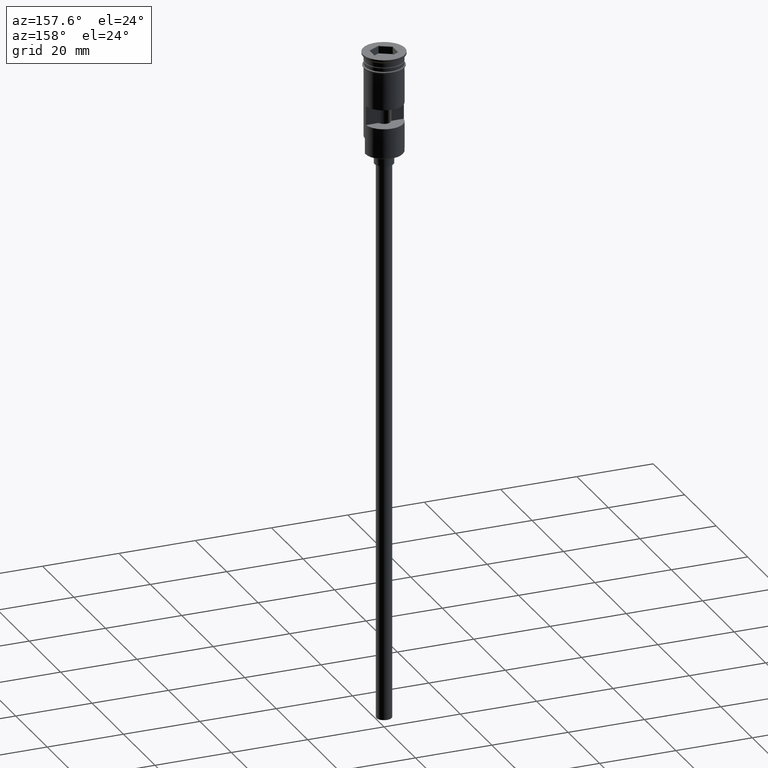
[diagram: clean part render]
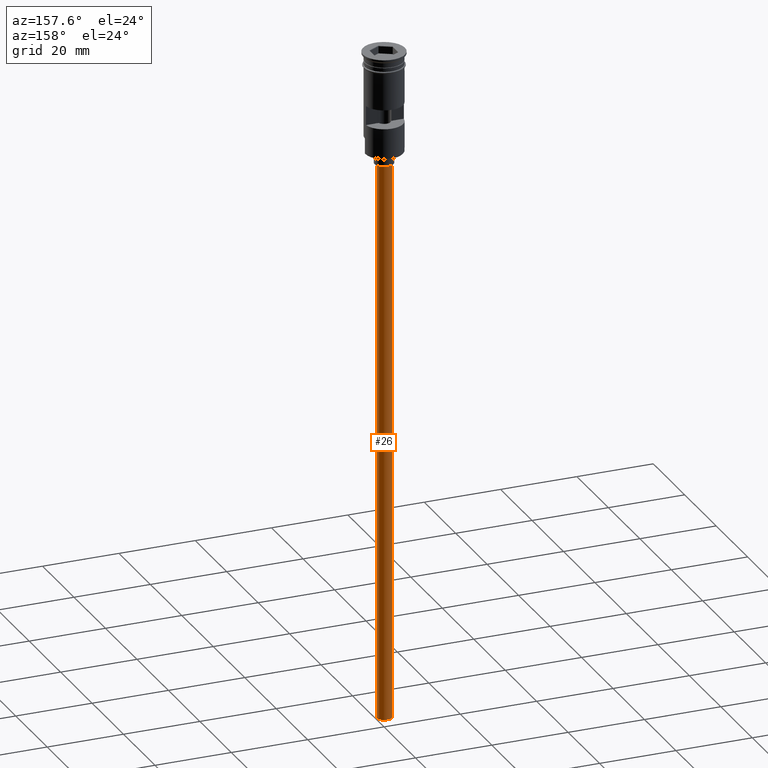
[diagram: same view with one face highlighted and labeled with its STEP entity id]
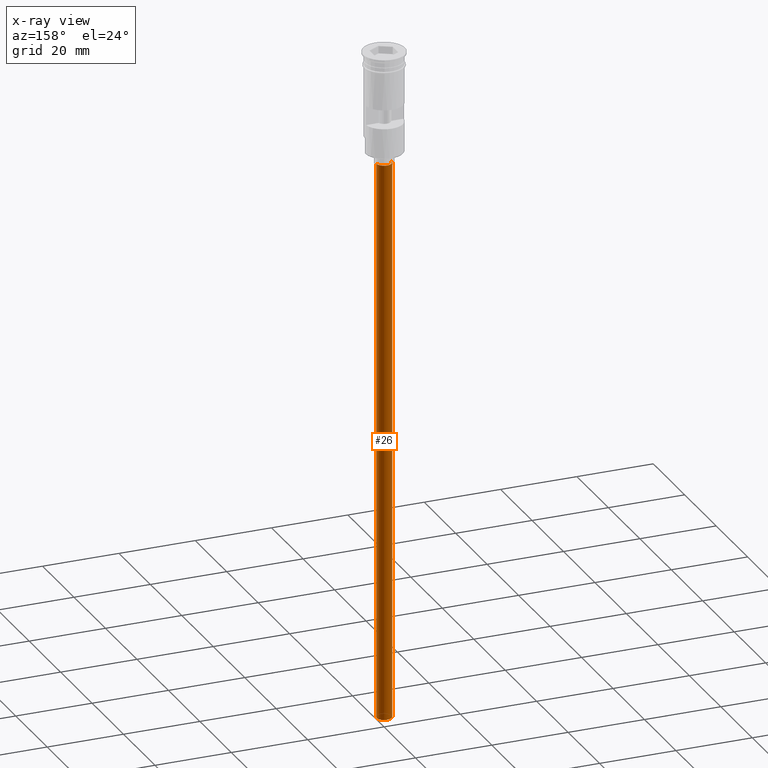
[diagram: x-ray of the same camera — body ghosted, the highlighted face saturated]
A machine part, auxiliary view. The second image highlights one B-rep face of the part: STEP entity #26.
The next image is the same camera in x-ray: the body ghosted, the highlighted face saturated — about 0% of this face is hidden behind the body in this view.
In plain terms, the highlighted cylindrical surface (edge-blend (fillet) strip) has radius 2 mm, axis along (-0, -0, 1).
Its self-contained STEP definition (entity closure, byte-faithful):
#26 = ADVANCED_FACE ( 'NONE', ( #309 ), #1020, .T. ) ;
#57 = CARTESIAN_POINT ( 'NONE',  ( 0.000000000000000000, 0.000000000000000000, -176.5000000000000000 ) ) ;
#87 = EDGE_CURVE ( 'NONE', #1250, #406, #927, .T. ) ;
#104 = CARTESIAN_POINT ( 'NONE',  ( 2.000000000000000000, 0.000000000000000000, -176.5000000000000000 ) ) ;
#105 = DIRECTION ( 'NONE',  ( -0.000000000000000000, -0.000000000000000000, 1.000000000000000000 ) ) ;
#137 = EDGE_CURVE ( 'NONE', #607, #270, #1076, .T. ) ;
#172 = DIRECTION ( 'NONE',  ( 1.000000000000000000, 0.000000000000000000, 0.000000000000000000 ) ) ;
#234 = AXIS2_PLACEMENT_3D ( 'NONE', #621, #972, #1112 ) ;
#270 = VERTEX_POINT ( 'NONE', #878 ) ;
#289 = CARTESIAN_POINT ( 'NONE',  ( -2.000000000000000000, 2.449293598294706414E-16, -29.50000000000000000 ) ) ;
#296 = EDGE_CURVE ( 'NONE', #406, #270, #696, .T. ) ;
#309 = FACE_OUTER_BOUND ( 'NONE', #1394, .T. ) ;
#310 = DIRECTION ( 'NONE',  ( -1.000000000000000000, 0.000000000000000000, 0.000000000000000000 ) ) ;
#406 = VERTEX_POINT ( 'NONE', #289 ) ;
#532 = ORIENTED_EDGE ( 'NONE', *, *, #296, .T. ) ;
#607 = VERTEX_POINT ( 'NONE', #104 ) ;
#620 = VECTOR ( 'NONE', #1069, 1000.000000000000000 ) ;
#621 = CARTESIAN_POINT ( 'NONE',  ( 0.000000000000000000, 0.000000000000000000, -29.50000000000000000 ) ) ;
#686 = CARTESIAN_POINT ( 'NONE',  ( 2.000000000000000000, 0.000000000000000000, -176.5000000000000000 ) ) ;
#696 = CIRCLE ( 'NONE', #234, 2.000000000000000000 ) ;
#807 = AXIS2_PLACEMENT_3D ( 'NONE', #57, #1274, #310 ) ;
#878 = CARTESIAN_POINT ( 'NONE',  ( 2.000000000000000000, 0.000000000000000000, -29.50000000000000000 ) ) ;
#900 = ORIENTED_EDGE ( 'NONE', *, *, #87, .T. ) ;
#927 = LINE ( 'NONE', #1343, #1160 ) ;
#972 = DIRECTION ( 'NONE',  ( 0.000000000000000000, 0.000000000000000000, -1.000000000000000000 ) ) ;
#1020 = CYLINDRICAL_SURFACE ( 'NONE', #1405, 2.000000000000000000 ) ;
#1039 = CARTESIAN_POINT ( 'NONE',  ( 0.000000000000000000, 0.000000000000000000, -176.5000000000000000 ) ) ;
#1069 = DIRECTION ( 'NONE',  ( -0.000000000000000000, -0.000000000000000000, 1.000000000000000000 ) ) ;
#1076 = LINE ( 'NONE', #686, #620 ) ;
#1112 = DIRECTION ( 'NONE',  ( -1.000000000000000000, 0.000000000000000000, 0.000000000000000000 ) ) ;
#1154 = ORIENTED_EDGE ( 'NONE', *, *, #1254, .F. ) ;
#1160 = VECTOR ( 'NONE', #105, 1000.000000000000000 ) ;
#1231 = ORIENTED_EDGE ( 'NONE', *, *, #137, .F. ) ;
#1250 = VERTEX_POINT ( 'NONE', #1419 ) ;
#1254 = EDGE_CURVE ( 'NONE', #1250, #607, #1487, .T. ) ;
#1274 = DIRECTION ( 'NONE',  ( 0.000000000000000000, 0.000000000000000000, -1.000000000000000000 ) ) ;
#1291 = DIRECTION ( 'NONE',  ( -0.000000000000000000, -0.000000000000000000, 1.000000000000000000 ) ) ;
#1343 = CARTESIAN_POINT ( 'NONE',  ( -2.000000000000000000, 2.449293598294706414E-16, -176.5000000000000000 ) ) ;
#1394 = EDGE_LOOP ( 'NONE', ( #1154, #900, #532, #1231 ) ) ;
#1405 = AXIS2_PLACEMENT_3D ( 'NONE', #1039, #1291, #172 ) ;
#1419 = CARTESIAN_POINT ( 'NONE',  ( -2.000000000000000000, 2.449293598294706414E-16, -176.5000000000000000 ) ) ;
#1487 = CIRCLE ( 'NONE', #807, 2.000000000000000000 ) ;